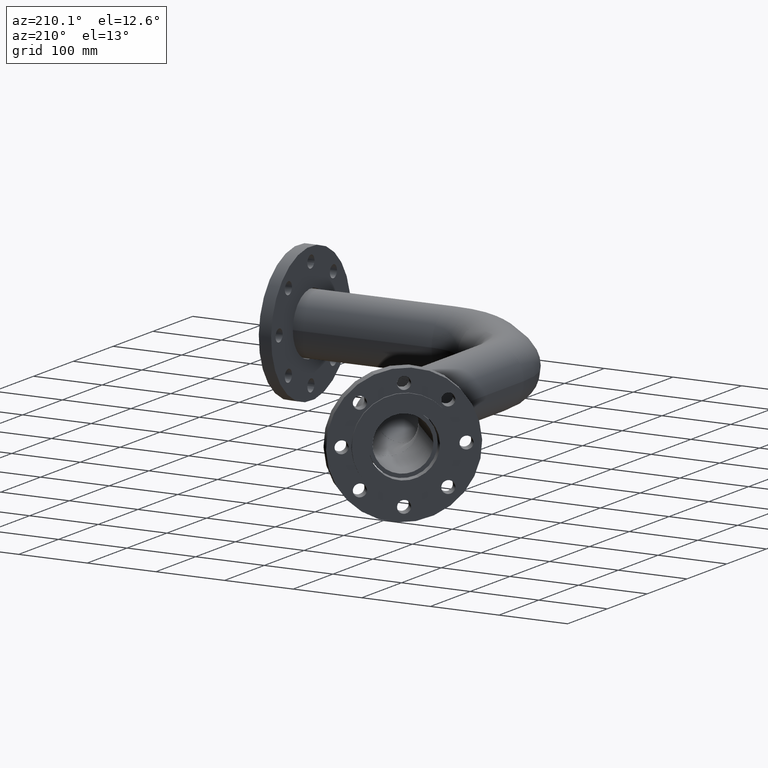
[diagram: clean part render]
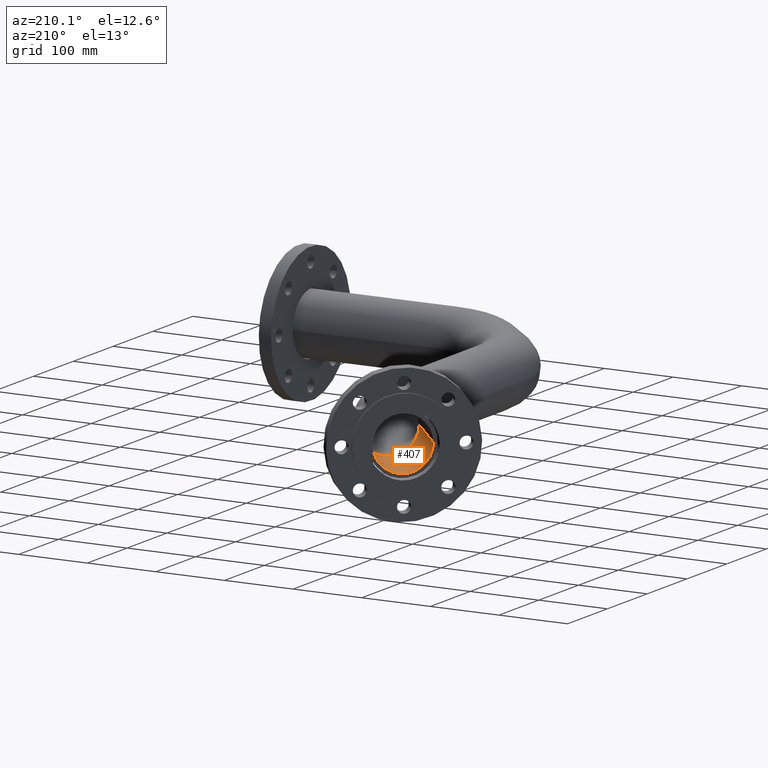
[diagram: same view with one face highlighted and labeled with its STEP entity id]
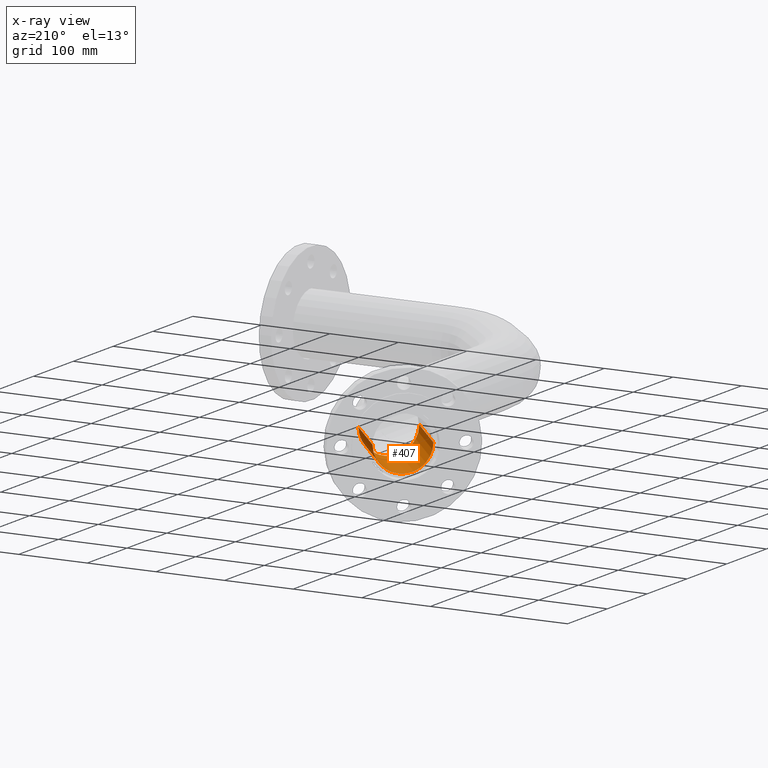
[diagram: x-ray of the same camera — body ghosted, the highlighted face saturated]
A machine part, auxiliary view. The second image highlights one B-rep face of the part: STEP entity #407.
The next image is the same camera in x-ray: the body ghosted, the highlighted face saturated — about 1% of this face is hidden behind the body in this view.
In plain terms, the highlighted cylindrical surface (edge-blend (fillet) strip) has radius 38.95 mm, axis along (0.6428, -0.766, 0).
Its self-contained STEP definition (entity closure, byte-faithful):
#16 = AXIS2_PLACEMENT_3D ( 'NONE', #1730, #589, #1344 ) ;
#23 = CYLINDRICAL_SURFACE ( 'NONE', #16, 38.95000000000004547 ) ;
#185 = CARTESIAN_POINT ( 'NONE',  ( -285.9833477455069328, 462.7492302262081694, 0.000000000000000000 ) ) ;
#406 = VERTEX_POINT ( 'NONE', #1701 ) ;
#407 = ADVANCED_FACE ( 'NONE', ( #1352 ), #23, .F. ) ;
#482 = DIRECTION ( 'NONE',  ( 0.6427876096865412503, -0.7660444431189763481, -0.000000000000000000 ) ) ;
#507 = LINE ( 'NONE', #1625, #2341 ) ;
#519 = CARTESIAN_POINT ( 'NONE',  ( -382.6049914452486291, 517.3029781715194986, 4.769999282678943960E-15 ) ) ;
#527 = LINE ( 'NONE', #1113, #2366 ) ;
#589 = DIRECTION ( 'NONE',  ( 0.6427876096865413613, -0.7660444431189764591, -0.000000000000000000 ) ) ;
#640 = ORIENTED_EDGE ( 'NONE', *, *, #1467, .F. ) ;
#684 = ORIENTED_EDGE ( 'NONE', *, *, #786, .T. ) ;
#698 = AXIS2_PLACEMENT_3D ( 'NONE', #185, #892, #1091 ) ;
#754 = DIRECTION ( 'NONE',  ( 0.6427876096865412503, -0.7660444431189763481, -0.000000000000000000 ) ) ;
#786 = EDGE_CURVE ( 'NONE', #2331, #1133, #507, .T. ) ;
#875 = VERTEX_POINT ( 'NONE', #1759 ) ;
#892 = DIRECTION ( 'NONE',  ( -0.6427876096865413613, 0.7660444431189764591, 0.000000000000000000 ) ) ;
#981 = EDGE_CURVE ( 'NONE', #406, #875, #527, .T. ) ;
#1001 = ORIENTED_EDGE ( 'NONE', *, *, #1526, .T. ) ;
#1091 = DIRECTION ( 'NONE',  ( -0.7660444431189763481, -0.6427876096865413613, 0.000000000000000000 ) ) ;
#1102 = CIRCLE ( 'NONE', #1368, 38.95000000000004547 ) ;
#1113 = CARTESIAN_POINT ( 'NONE',  ( -322.9301293262802801, 567.3761329661010677, 0.000000000000000000 ) ) ;
#1123 = EDGE_LOOP ( 'NONE', ( #1001, #684, #640, #1705 ) ) ;
#1133 = VERTEX_POINT ( 'NONE', #1185 ) ;
#1185 = CARTESIAN_POINT ( 'NONE',  ( -315.8207788049911073, 437.7126528289173848, 4.769999282678943960E-15 ) ) ;
#1344 = DIRECTION ( 'NONE',  ( 0.7660444431189763481, 0.6427876096865413613, 0.000000000000000000 ) ) ;
#1352 = FACE_OUTER_BOUND ( 'NONE', #1123, .T. ) ;
#1368 = AXIS2_PLACEMENT_3D ( 'NONE', #1627, #2253, #1843 ) ;
#1467 = EDGE_CURVE ( 'NONE', #875, #1133, #2194, .T. ) ;
#1526 = EDGE_CURVE ( 'NONE', #406, #2331, #1102, .T. ) ;
#1625 = CARTESIAN_POINT ( 'NONE',  ( -382.6049914452486291, 517.3029781715194986, 4.769999282678943960E-15 ) ) ;
#1627 = CARTESIAN_POINT ( 'NONE',  ( -352.7675603857644546, 542.3395555688102831, 0.000000000000000000 ) ) ;
#1701 = CARTESIAN_POINT ( 'NONE',  ( -322.9301293262802801, 567.3761329661010677, 0.000000000000000000 ) ) ;
#1705 = ORIENTED_EDGE ( 'NONE', *, *, #981, .F. ) ;
#1730 = CARTESIAN_POINT ( 'NONE',  ( -352.7675603857644546, 542.3395555688102831, 0.000000000000000000 ) ) ;
#1759 = CARTESIAN_POINT ( 'NONE',  ( -256.1459166860227583, 487.7858076234990108, 0.000000000000000000 ) ) ;
#1843 = DIRECTION ( 'NONE',  ( -0.7660444431189763481, -0.6427876096865413613, 0.000000000000000000 ) ) ;
#2194 = CIRCLE ( 'NONE', #698, 38.95000000000004547 ) ;
#2253 = DIRECTION ( 'NONE',  ( -0.6427876096865413613, 0.7660444431189764591, 0.000000000000000000 ) ) ;
#2331 = VERTEX_POINT ( 'NONE', #519 ) ;
#2341 = VECTOR ( 'NONE', #482, 1000.000000000000114 ) ;
#2366 = VECTOR ( 'NONE', #754, 1000.000000000000114 ) ;